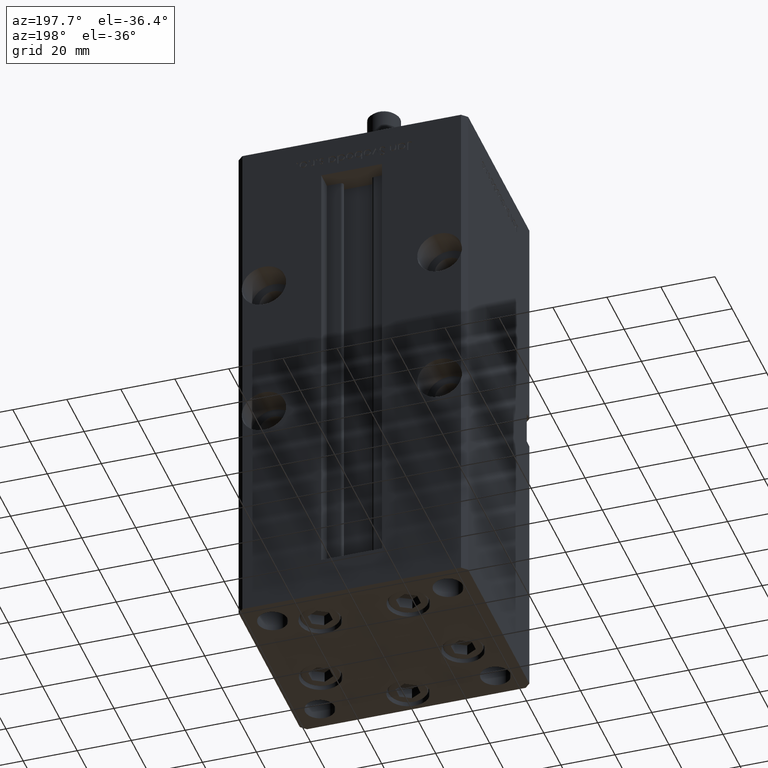
[diagram: clean part render]
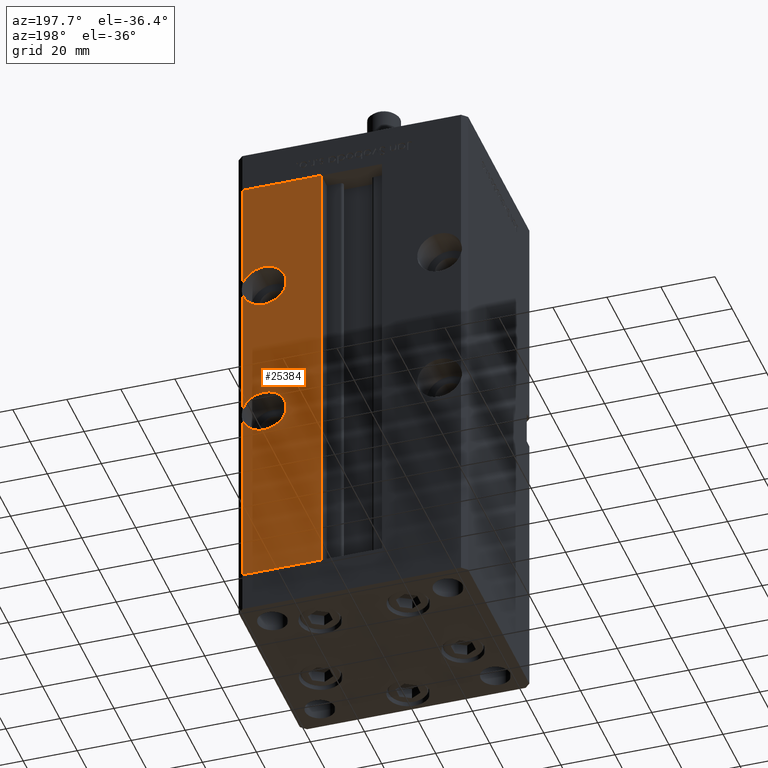
[diagram: same view with one face highlighted and labeled with its STEP entity id]
A machine part, auxiliary view. The second image highlights one B-rep face of the part: STEP entity #25384.
In plain terms, the highlighted planar face has unit normal (0, -1, 0).
Its self-contained STEP definition (entity closure, byte-faithful):
#611 = CARTESIAN_POINT ( 'NONE',  ( 40.50000000000000711, 37.50000000000000000, 72.01556443707463018 ) ) ;
#719 = EDGE_CURVE ( 'NONE', #53690, #22978, #33005, .T. ) ;
#931 = DIRECTION ( 'NONE',  ( 0.000000000000000000, 0.000000000000000000, -1.000000000000000000 ) ) ;
#2090 = CARTESIAN_POINT ( 'NONE',  ( 32.50000000000000000, 37.50000000000000000, 70.00000000000002842 ) ) ;
#2126 = AXIS2_PLACEMENT_3D ( 'NONE', #19449, #23324, #18641 ) ;
#2156 = DIRECTION ( 'NONE',  ( 0.000000000000000000, 0.000000000000000000, -1.000000000000000000 ) ) ;
#2627 = DIRECTION ( 'NONE',  ( 0.000000000000000000, 0.000000000000000000, -1.000000000000000000 ) ) ;
#2950 = CARTESIAN_POINT ( 'NONE',  ( 40.50000000000000711, 37.50000000000000000, 168.5000000000000000 ) ) ;
#3274 = ORIENTED_EDGE ( 'NONE', *, *, #19326, .T. ) ;
#4412 = VERTEX_POINT ( 'NONE', #34490 ) ;
#4987 = CARTESIAN_POINT ( 'NONE',  ( 40.50000000000000711, 37.50000000000000000, 127.0155644370746728 ) ) ;
#6808 = DIRECTION ( 'NONE',  ( 0.000000000000000000, 1.000000000000000000, -0.000000000000000000 ) ) ;
#7042 = DIRECTION ( 'NONE',  ( 0.000000000000000000, -1.000000000000000000, 0.000000000000000000 ) ) ;
#7445 = VERTEX_POINT ( 'NONE', #49463 ) ;
#7461 = CARTESIAN_POINT ( 'NONE',  ( 40.50000000000000711, 37.50000000000000000, 168.5000000000000000 ) ) ;
#7619 = DIRECTION ( 'NONE',  ( -0.000000000000000000, -0.000000000000000000, -1.000000000000000000 ) ) ;
#7730 = VERTEX_POINT ( 'NONE', #9247 ) ;
#7991 = VERTEX_POINT ( 'NONE', #611 ) ;
#8278 = VECTOR ( 'NONE', #32249, 1000.000000000000000 ) ;
#8397 = VERTEX_POINT ( 'NONE', #10934 ) ;
#9247 = CARTESIAN_POINT ( 'NONE',  ( 11.24999999999999822, 37.50000000000000000, 0.000000000000000000 ) ) ;
#9383 = ORIENTED_EDGE ( 'NONE', *, *, #22853, .T. ) ;
#10901 = PLANE ( 'NONE',  #26733 ) ;
#10934 = CARTESIAN_POINT ( 'NONE',  ( 40.50000000000000711, 37.50000000000000000, 0.000000000000000000 ) ) ;
#11034 = ORIENTED_EDGE ( 'NONE', *, *, #13630, .F. ) ;
#12195 = DIRECTION ( 'NONE',  ( 0.000000000000000000, 0.000000000000000000, 1.000000000000000000 ) ) ;
#12633 = VERTEX_POINT ( 'NONE', #48629 ) ;
#13630 = EDGE_CURVE ( 'NONE', #44443, #7991, #23806, .T. ) ;
#14071 = CARTESIAN_POINT ( 'NONE',  ( -11.24999999999999822, 37.50000000000000000, 168.5000000000000000 ) ) ;
#14784 = DIRECTION ( 'NONE',  ( -0.000000000000000000, -0.000000000000000000, 1.000000000000000000 ) ) ;
#14965 = EDGE_CURVE ( 'NONE', #50563, #7991, #28338, .T. ) ;
#15163 = ORIENTED_EDGE ( 'NONE', *, *, #17778, .F. ) ;
#15283 = EDGE_CURVE ( 'NONE', #4412, #8397, #15325, .T. ) ;
#15325 = LINE ( 'NONE', #2950, #41398 ) ;
#16443 = ORIENTED_EDGE ( 'NONE', *, *, #27213, .T. ) ;
#17167 = DIRECTION ( 'NONE',  ( -1.000000000000000000, 0.000000000000000000, 0.000000000000000000 ) ) ;
#17778 = EDGE_CURVE ( 'NONE', #4412, #43001, #33625, .T. ) ;
#18094 = AXIS2_PLACEMENT_3D ( 'NONE', #33396, #50706, #12195 ) ;
#18641 = DIRECTION ( 'NONE',  ( 0.000000000000000000, 0.000000000000000000, 1.000000000000000000 ) ) ;
#18919 = LINE ( 'NONE', #35698, #27547 ) ;
#19326 = EDGE_CURVE ( 'NONE', #7730, #12633, #18919, .T. ) ;
#19438 = DIRECTION ( 'NONE',  ( 0.000000000000000000, -0.000000000000000000, -1.000000000000000000 ) ) ;
#19449 = CARTESIAN_POINT ( 'NONE',  ( 32.50000000000000000, 37.50000000000000000, 125.0000000000000284 ) ) ;
#21307 = CARTESIAN_POINT ( 'NONE',  ( -11.24999999999999822, 37.50000000000000000, 0.000000000000000000 ) ) ;
#21817 = DIRECTION ( 'NONE',  ( 1.000000000000000000, 0.000000000000000000, 0.000000000000000000 ) ) ;
#21968 = EDGE_CURVE ( 'NONE', #50563, #47652, #49517, .T. ) ;
#22853 = EDGE_CURVE ( 'NONE', #7445, #22978, #44860, .T. ) ;
#22946 = VECTOR ( 'NONE', #44805, 1000.000000000000000 ) ;
#22978 = VERTEX_POINT ( 'NONE', #4987 ) ;
#23165 = AXIS2_PLACEMENT_3D ( 'NONE', #39817, #6808, #2156 ) ;
#23324 = DIRECTION ( 'NONE',  ( 0.000000000000000000, 1.000000000000000000, 0.000000000000000000 ) ) ;
#23806 = CIRCLE ( 'NONE', #39618, 8.249999999999992895 ) ;
#25384 = ADVANCED_FACE ( 'NONE', ( #52962 ), #10901, .F. ) ;
#25454 = CARTESIAN_POINT ( 'NONE',  ( 32.50000000000000000, 37.50000000000000000, 70.00000000000002842 ) ) ;
#26733 = AXIS2_PLACEMENT_3D ( 'NONE', #44976, #7042, #19438 ) ;
#27213 = EDGE_CURVE ( 'NONE', #8397, #7730, #46584, .T. ) ;
#27547 = VECTOR ( 'NONE', #14784, 1000.000000000000000 ) ;
#28338 = LINE ( 'NONE', #49206, #22946 ) ;
#29698 = ORIENTED_EDGE ( 'NONE', *, *, #54068, .F. ) ;
#30247 = VECTOR ( 'NONE', #17167, 1000.000000000000000 ) ;
#31573 = ORIENTED_EDGE ( 'NONE', *, *, #15283, .T. ) ;
#32249 = DIRECTION ( 'NONE',  ( -0.000000000000000000, -0.000000000000000000, -1.000000000000000000 ) ) ;
#33005 = CIRCLE ( 'NONE', #18094, 8.250000000000007105 ) ;
#33396 = CARTESIAN_POINT ( 'NONE',  ( 32.50000000000000000, 37.50000000000000000, 125.0000000000000284 ) ) ;
#33625 = CIRCLE ( 'NONE', #46789, 8.249999999999992895 ) ;
#33694 = DIRECTION ( 'NONE',  ( 0.000000000000000000, 1.000000000000000000, 0.000000000000000000 ) ) ;
#34490 = CARTESIAN_POINT ( 'NONE',  ( 40.50000000000000711, 37.50000000000000000, 67.98443556292544088 ) ) ;
#34600 = ORIENTED_EDGE ( 'NONE', *, *, #42605, .F. ) ;
#34734 = LINE ( 'NONE', #14071, #53971 ) ;
#35010 = CARTESIAN_POINT ( 'NONE',  ( 40.50000000000000711, 37.50000000000000000, 122.9844355629253556 ) ) ;
#35309 = CARTESIAN_POINT ( 'NONE',  ( 32.50000000000000000, 37.50000000000000000, 116.7500000000000142 ) ) ;
#35698 = CARTESIAN_POINT ( 'NONE',  ( 11.24999999999999822, 37.50000000000000000, 0.000000000000000000 ) ) ;
#36098 = ORIENTED_EDGE ( 'NONE', *, *, #719, .F. ) ;
#36300 = CIRCLE ( 'NONE', #23165, 8.249999999999992895 ) ;
#38338 = DIRECTION ( 'NONE',  ( 0.000000000000000000, 1.000000000000000000, -0.000000000000000000 ) ) ;
#39618 = AXIS2_PLACEMENT_3D ( 'NONE', #25454, #38338, #931 ) ;
#39817 = CARTESIAN_POINT ( 'NONE',  ( 32.50000000000000000, 37.50000000000000000, 70.00000000000002842 ) ) ;
#40026 = AXIS2_PLACEMENT_3D ( 'NONE', #49906, #33694, #54295 ) ;
#41127 = ORIENTED_EDGE ( 'NONE', *, *, #14965, .T. ) ;
#41398 = VECTOR ( 'NONE', #7619, 1000.000000000000000 ) ;
#42605 = EDGE_CURVE ( 'NONE', #43001, #44443, #36300, .T. ) ;
#43001 = VERTEX_POINT ( 'NONE', #50930 ) ;
#44443 = VERTEX_POINT ( 'NONE', #54365 ) ;
#44501 = ORIENTED_EDGE ( 'NONE', *, *, #51632, .T. ) ;
#44805 = DIRECTION ( 'NONE',  ( -0.000000000000000000, -0.000000000000000000, -1.000000000000000000 ) ) ;
#44860 = LINE ( 'NONE', #7461, #8278 ) ;
#44940 = DIRECTION ( 'NONE',  ( 0.000000000000000000, 1.000000000000000000, -0.000000000000000000 ) ) ;
#44976 = CARTESIAN_POINT ( 'NONE',  ( -11.24999999999999822, 37.50000000000000000, 168.5000000000000000 ) ) ;
#46584 = LINE ( 'NONE', #21307, #30247 ) ;
#46789 = AXIS2_PLACEMENT_3D ( 'NONE', #2090, #44940, #2627 ) ;
#47652 = VERTEX_POINT ( 'NONE', #35309 ) ;
#48629 = CARTESIAN_POINT ( 'NONE',  ( 11.24999999999999112, 37.50000000000000000, 168.5000000000000000 ) ) ;
#49206 = CARTESIAN_POINT ( 'NONE',  ( 40.50000000000000711, 37.50000000000000000, 168.5000000000000000 ) ) ;
#49250 = EDGE_LOOP ( 'NONE', ( #41127, #11034, #34600, #15163, #31573, #16443, #3274, #44501, #9383, #36098, #29698, #51075 ) ) ;
#49463 = CARTESIAN_POINT ( 'NONE',  ( 40.50000000000000711, 37.50000000000000000, 168.5000000000000000 ) ) ;
#49517 = CIRCLE ( 'NONE', #2126, 8.250000000000007105 ) ;
#49709 = CIRCLE ( 'NONE', #40026, 8.250000000000007105 ) ;
#49906 = CARTESIAN_POINT ( 'NONE',  ( 32.50000000000000000, 37.50000000000000000, 125.0000000000000284 ) ) ;
#50563 = VERTEX_POINT ( 'NONE', #35010 ) ;
#50706 = DIRECTION ( 'NONE',  ( 0.000000000000000000, 1.000000000000000000, 0.000000000000000000 ) ) ;
#50930 = CARTESIAN_POINT ( 'NONE',  ( 32.50000000000000000, 37.50000000000000000, 61.75000000000004263 ) ) ;
#51075 = ORIENTED_EDGE ( 'NONE', *, *, #21968, .F. ) ;
#51632 = EDGE_CURVE ( 'NONE', #12633, #7445, #34734, .T. ) ;
#52739 = CARTESIAN_POINT ( 'NONE',  ( 32.50000000000000000, 37.50000000000000000, 133.2500000000000284 ) ) ;
#52962 = FACE_OUTER_BOUND ( 'NONE', #49250, .T. ) ;
#53690 = VERTEX_POINT ( 'NONE', #52739 ) ;
#53971 = VECTOR ( 'NONE', #21817, 1000.000000000000000 ) ;
#54068 = EDGE_CURVE ( 'NONE', #47652, #53690, #49709, .T. ) ;
#54295 = DIRECTION ( 'NONE',  ( 0.000000000000000000, 0.000000000000000000, 1.000000000000000000 ) ) ;
#54365 = CARTESIAN_POINT ( 'NONE',  ( 32.50000000000000000, 37.50000000000000000, 78.25000000000002842 ) ) ;